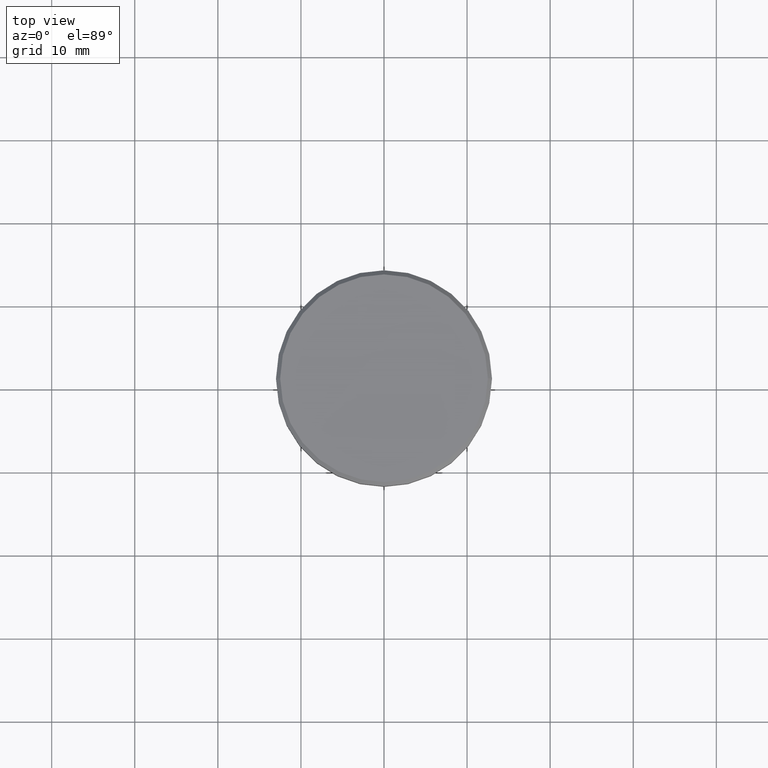
[diagram: clean part render]
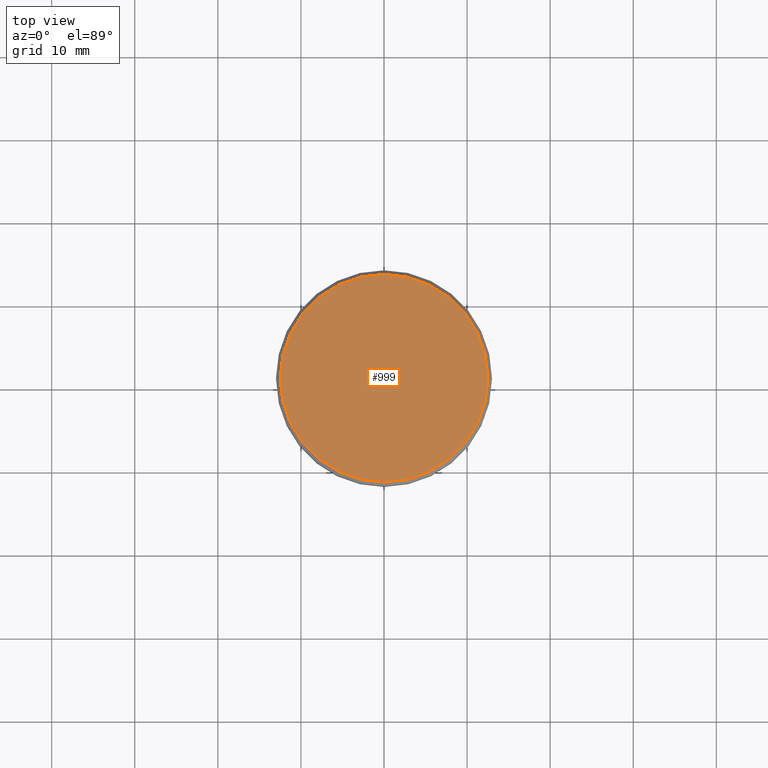
[diagram: same view with one face highlighted and labeled with its STEP entity id]
A machine part, top view. The second image highlights one B-rep face of the part: STEP entity #999.
In plain terms, the highlighted planar face has unit normal (0, -0, 1).
Its self-contained STEP definition (entity closure, byte-faithful):
#4 = CARTESIAN_POINT ( 'NONE',  ( -12.50000000000002487, 0.000000000000000000, 0.000000000000000000 ) ) ;
#57 = EDGE_LOOP ( 'NONE', ( #1052, #1157 ) ) ;
#112 = EDGE_CURVE ( 'NONE', #573, #143, #726, .T. ) ;
#143 = VERTEX_POINT ( 'NONE', #4 ) ;
#152 = FACE_OUTER_BOUND ( 'NONE', #57, .T. ) ;
#161 = CIRCLE ( 'NONE', #986, 12.50000000000002487 ) ;
#195 = AXIS2_PLACEMENT_3D ( 'NONE', #808, #1069, #620 ) ;
#363 = DIRECTION ( 'NONE',  ( -0.000000000000000000, -0.000000000000000000, 1.000000000000000000 ) ) ;
#414 = DIRECTION ( 'NONE',  ( 1.000000000000000000, 0.000000000000000000, 0.000000000000000000 ) ) ;
#518 = PLANE ( 'NONE',  #195 ) ;
#563 = DIRECTION ( 'NONE',  ( 1.000000000000000000, 0.000000000000000000, 0.000000000000000000 ) ) ;
#573 = VERTEX_POINT ( 'NONE', #613 ) ;
#613 = CARTESIAN_POINT ( 'NONE',  ( 12.50000000000002487, 1.561424668912876886E-15, 0.000000000000000000 ) ) ;
#620 = DIRECTION ( 'NONE',  ( 1.000000000000000000, 0.000000000000000000, 0.000000000000000000 ) ) ;
#625 = CARTESIAN_POINT ( 'NONE',  ( 0.000000000000000000, 0.000000000000000000, 0.000000000000000000 ) ) ;
#626 = AXIS2_PLACEMENT_3D ( 'NONE', #735, #363, #563 ) ;
#715 = EDGE_CURVE ( 'NONE', #143, #573, #161, .T. ) ;
#726 = CIRCLE ( 'NONE', #626, 12.50000000000002487 ) ;
#735 = CARTESIAN_POINT ( 'NONE',  ( 0.000000000000000000, 0.000000000000000000, 0.000000000000000000 ) ) ;
#808 = CARTESIAN_POINT ( 'NONE',  ( 0.000000000000000000, 0.000000000000000000, 0.000000000000000000 ) ) ;
#986 = AXIS2_PLACEMENT_3D ( 'NONE', #625, #1065, #414 ) ;
#999 = ADVANCED_FACE ( 'NONE', ( #152 ), #518, .T. ) ;
#1052 = ORIENTED_EDGE ( 'NONE', *, *, #715, .T. ) ;
#1065 = DIRECTION ( 'NONE',  ( -0.000000000000000000, -0.000000000000000000, 1.000000000000000000 ) ) ;
#1069 = DIRECTION ( 'NONE',  ( 0.000000000000000000, -0.000000000000000000, 1.000000000000000000 ) ) ;
#1157 = ORIENTED_EDGE ( 'NONE', *, *, #112, .T. ) ;